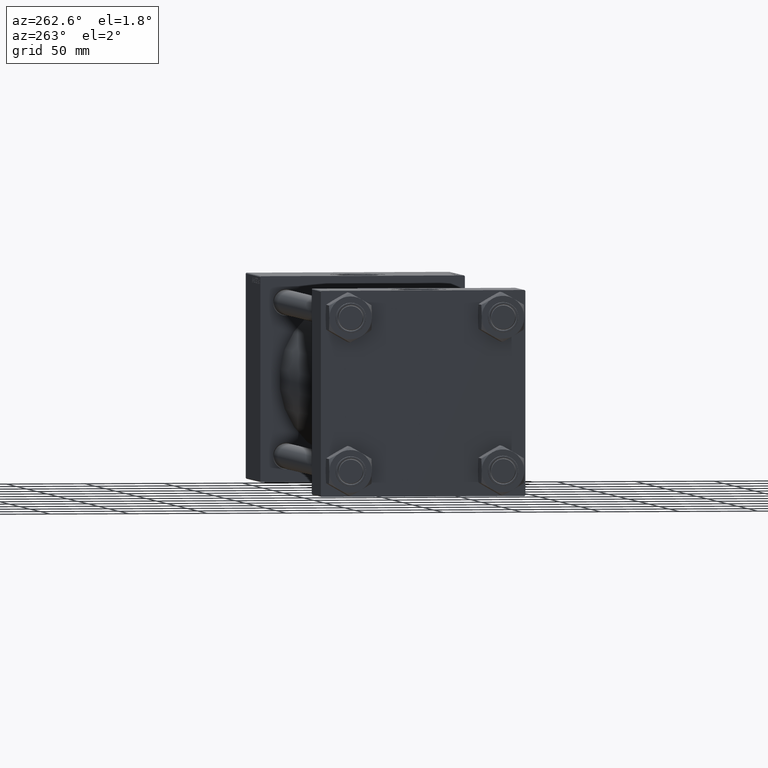
[diagram: clean part render]
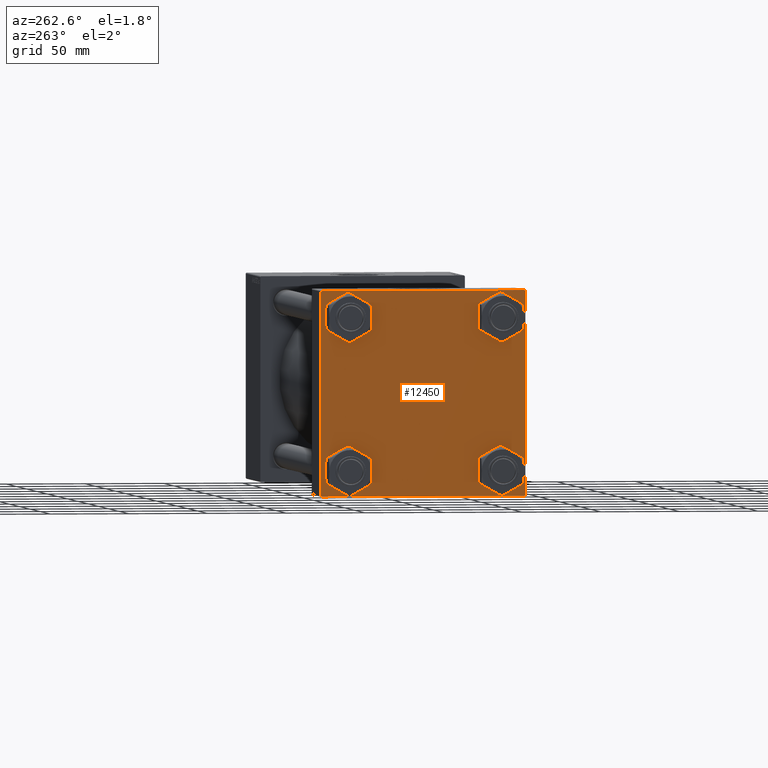
[diagram: same view with one face highlighted and labeled with its STEP entity id]
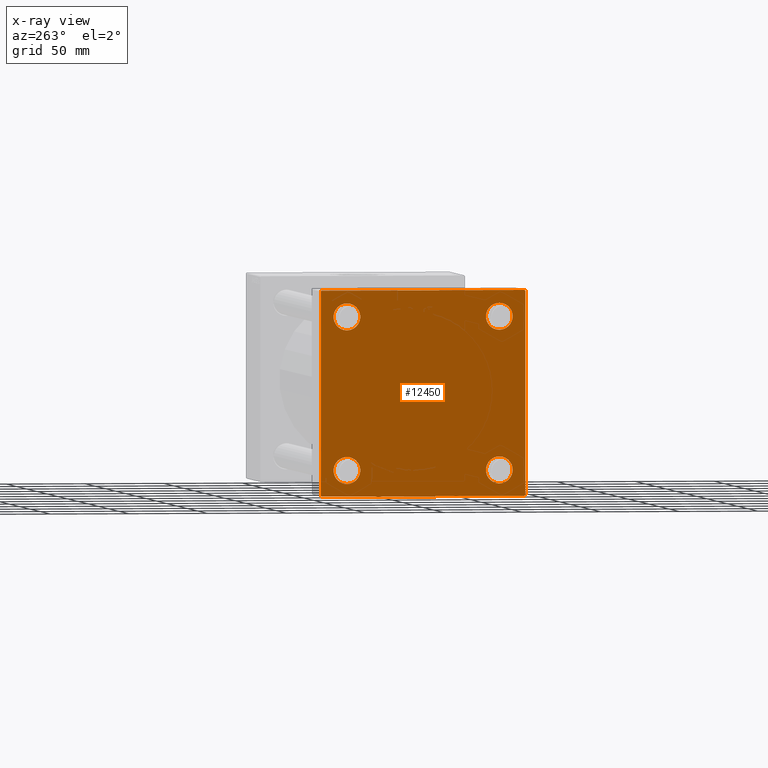
[diagram: x-ray of the same camera — body ghosted, the highlighted face saturated]
A machine part, auxiliary view. The second image highlights one B-rep face of the part: STEP entity #12450.
The next image is the same camera in x-ray: the body ghosted, the highlighted face saturated — about 0% of this face is hidden behind the body in this view.
In plain terms, the highlighted planar face has unit normal (-1, 0, 0).
Its self-contained STEP definition (entity closure, byte-faithful):
#1081 = EDGE_CURVE ( 'NONE', #50172, #30473, #34067, .T. ) ;
#1301 = DIRECTION ( 'NONE',  ( 0.000000000000000000, -0.7071067811865279218, 0.7071067811865671127 ) ) ;
#1436 = DIRECTION ( 'NONE',  ( 0.000000000000000000, 0.000000000000000000, 1.000000000000000000 ) ) ;
#2717 = VECTOR ( 'NONE', #19235, 1000.000000000000000 ) ;
#2837 = DIRECTION ( 'NONE',  ( 1.000000000000000000, -0.000000000000000000, 0.000000000000000000 ) ) ;
#3359 = ORIENTED_EDGE ( 'NONE', *, *, #30015, .T. ) ;
#3396 = CARTESIAN_POINT ( 'NONE',  ( 0.000000000000000000, -48.44999999999999574, 56.95000000000003837 ) ) ;
#3439 = CARTESIAN_POINT ( 'NONE',  ( 0.000000000000000000, -65.00000000000000000, 64.50000000000000000 ) ) ;
#3901 = DIRECTION ( 'NONE',  ( 0.000000000000000000, 0.000000000000000000, 1.000000000000000000 ) ) ;
#4185 = EDGE_CURVE ( 'NONE', #35173, #28397, #23571, .T. ) ;
#4513 = CARTESIAN_POINT ( 'NONE',  ( 0.000000000000000000, -48.44999999999999574, -48.45000000000003126 ) ) ;
#5621 = CARTESIAN_POINT ( 'NONE',  ( 0.000000000000000000, 48.45000000000000995, -48.45000000000001705 ) ) ;
#5921 = CARTESIAN_POINT ( 'NONE',  ( 0.000000000000000000, 48.45000000000000995, 48.45000000000001705 ) ) ;
#6230 = DIRECTION ( 'NONE',  ( 1.000000000000000000, -0.000000000000000000, 0.000000000000000000 ) ) ;
#6255 = AXIS2_PLACEMENT_3D ( 'NONE', #5921, #2837, #34088 ) ;
#6269 = ORIENTED_EDGE ( 'NONE', *, *, #48920, .T. ) ;
#7040 = DIRECTION ( 'NONE',  ( -0.000000000000000000, -0.7071067811865474617, -0.7071067811865474617 ) ) ;
#7200 = VECTOR ( 'NONE', #29361, 1000.000000000000000 ) ;
#7766 = ORIENTED_EDGE ( 'NONE', *, *, #14516, .T. ) ;
#7791 = ORIENTED_EDGE ( 'NONE', *, *, #11510, .T. ) ;
#8300 = VECTOR ( 'NONE', #27948, 1000.000000000000000 ) ;
#8489 = EDGE_LOOP ( 'NONE', ( #49557, #3359, #22633, #7791, #27743, #42726, #21791, #23147 ) ) ;
#8968 = EDGE_CURVE ( 'NONE', #36947, #23292, #48527, .T. ) ;
#9744 = DIRECTION ( 'NONE',  ( -0.000000000000000000, 0.000000000000000000, 1.000000000000000000 ) ) ;
#9885 = CARTESIAN_POINT ( 'NONE',  ( 0.000000000000000000, 65.00000000000000000, 65.00000000000001421 ) ) ;
#10140 = CARTESIAN_POINT ( 'NONE',  ( 0.000000000000000000, -48.44999999999999574, -39.95000000000001705 ) ) ;
#11128 = DIRECTION ( 'NONE',  ( 1.000000000000000000, -0.000000000000000000, 0.000000000000000000 ) ) ;
#11139 = CARTESIAN_POINT ( 'NONE',  ( 0.000000000000000000, 48.45000000000000995, 39.95000000000000284 ) ) ;
#11188 = EDGE_LOOP ( 'NONE', ( #28393, #23780 ) ) ;
#11240 = VERTEX_POINT ( 'NONE', #33627 ) ;
#11510 = EDGE_CURVE ( 'NONE', #21568, #28397, #20513, .T. ) ;
#12013 = EDGE_CURVE ( 'NONE', #42841, #30139, #33136, .T. ) ;
#12450 = ADVANCED_FACE ( 'NONE', ( #49192, #22542, #22292, #14864, #14107 ), #29732, .T. ) ;
#13542 = DIRECTION ( 'NONE',  ( 0.000000000000000000, -1.000000000000000000, -1.067522139062650425E-16 ) ) ;
#13837 = CARTESIAN_POINT ( 'NONE',  ( 0.000000000000000000, 65.00000000000000000, 64.49999999999998579 ) ) ;
#13966 = CARTESIAN_POINT ( 'NONE',  ( 0.000000000000000000, -48.44999999999999574, 48.45000000000003126 ) ) ;
#14053 = LINE ( 'NONE', #33013, #14569 ) ;
#14107 = FACE_OUTER_BOUND ( 'NONE', #8489, .T. ) ;
#14516 = EDGE_CURVE ( 'NONE', #23292, #36947, #34595, .T. ) ;
#14569 = VECTOR ( 'NONE', #13542, 1000.000000000000000 ) ;
#14864 = FACE_BOUND ( 'NONE', #46292, .T. ) ;
#15538 = DIRECTION ( 'NONE',  ( -0.000000000000000000, 0.7071067811865672237, 0.7071067811865279218 ) ) ;
#16534 = ORIENTED_EDGE ( 'NONE', *, *, #8968, .T. ) ;
#16579 = EDGE_LOOP ( 'NONE', ( #26312, #6269 ) ) ;
#17698 = CIRCLE ( 'NONE', #6255, 8.500000000000007105 ) ;
#18018 = VERTEX_POINT ( 'NONE', #36144 ) ;
#18753 = CIRCLE ( 'NONE', #47375, 8.500000000000007105 ) ;
#18949 = CIRCLE ( 'NONE', #42671, 8.500000000000007105 ) ;
#19066 = CARTESIAN_POINT ( 'NONE',  ( 0.000000000000000000, 64.74999999999997158, -64.74999999999997158 ) ) ;
#19235 = DIRECTION ( 'NONE',  ( 0.000000000000000000, 0.000000000000000000, -1.000000000000000000 ) ) ;
#19552 = VECTOR ( 'NONE', #15538, 1000.000000000000000 ) ;
#20139 = DIRECTION ( 'NONE',  ( 0.000000000000000000, 0.000000000000000000, 1.000000000000000000 ) ) ;
#20269 = CARTESIAN_POINT ( 'NONE',  ( 0.000000000000000000, 65.00000000000000000, -64.99999999999998579 ) ) ;
#20326 = CARTESIAN_POINT ( 'NONE',  ( 0.000000000000000000, 48.45000000000000995, 56.95000000000002416 ) ) ;
#20336 = CARTESIAN_POINT ( 'NONE',  ( 0.000000000000000000, -64.49999999999994316, -65.00000000000000000 ) ) ;
#20513 = LINE ( 'NONE', #43558, #41245 ) ;
#20570 = ORIENTED_EDGE ( 'NONE', *, *, #27316, .T. ) ;
#21151 = CARTESIAN_POINT ( 'NONE',  ( 0.000000000000000000, 48.45000000000000995, -48.45000000000001705 ) ) ;
#21414 = LINE ( 'NONE', #9885, #7200 ) ;
#21568 = VERTEX_POINT ( 'NONE', #20336 ) ;
#21660 = DIRECTION ( 'NONE',  ( 1.000000000000000000, -0.000000000000000000, 0.000000000000000000 ) ) ;
#21791 = ORIENTED_EDGE ( 'NONE', *, *, #31510, .F. ) ;
#22292 = FACE_BOUND ( 'NONE', #11188, .T. ) ;
#22542 = FACE_BOUND ( 'NONE', #16579, .T. ) ;
#22633 = ORIENTED_EDGE ( 'NONE', *, *, #48064, .T. ) ;
#22720 = CARTESIAN_POINT ( 'NONE',  ( -0.000000000000000000, -64.74999999999819522, 64.75000000000179057 ) ) ;
#23147 = ORIENTED_EDGE ( 'NONE', *, *, #1081, .T. ) ;
#23220 = LINE ( 'NONE', #22720, #19552 ) ;
#23287 = AXIS2_PLACEMENT_3D ( 'NONE', #38346, #30671, #46038 ) ;
#23292 = VERTEX_POINT ( 'NONE', #37765 ) ;
#23571 = LINE ( 'NONE', #27420, #2717 ) ;
#23780 = ORIENTED_EDGE ( 'NONE', *, *, #24575, .T. ) ;
#24575 = EDGE_CURVE ( 'NONE', #29274, #35463, #35723, .T. ) ;
#26312 = ORIENTED_EDGE ( 'NONE', *, *, #34935, .T. ) ;
#26808 = CARTESIAN_POINT ( 'NONE',  ( 0.000000000000000000, 64.49999999999997158, -64.99999999999998579 ) ) ;
#26952 = CARTESIAN_POINT ( 'NONE',  ( 0.000000000000000000, 64.49999999999997158, 65.00000000000001421 ) ) ;
#27316 = EDGE_CURVE ( 'NONE', #30139, #42841, #17698, .T. ) ;
#27420 = CARTESIAN_POINT ( 'NONE',  ( 0.000000000000000000, -65.00000000000000000, 65.00000000000000000 ) ) ;
#27743 = ORIENTED_EDGE ( 'NONE', *, *, #4185, .F. ) ;
#27948 = DIRECTION ( 'NONE',  ( 0.000000000000000000, -1.000000000000000000, -1.067522139062650425E-16 ) ) ;
#28393 = ORIENTED_EDGE ( 'NONE', *, *, #48454, .T. ) ;
#28397 = VERTEX_POINT ( 'NONE', #40457 ) ;
#28469 = CARTESIAN_POINT ( 'NONE',  ( 0.000000000000000000, 48.45000000000000995, -39.95000000000000284 ) ) ;
#28719 = LINE ( 'NONE', #20269, #8300 ) ;
#29191 = DIRECTION ( 'NONE',  ( 0.000000000000000000, 0.000000000000000000, 1.000000000000000000 ) ) ;
#29274 = VERTEX_POINT ( 'NONE', #43834 ) ;
#29361 = DIRECTION ( 'NONE',  ( 0.000000000000000000, 0.000000000000000000, -1.000000000000000000 ) ) ;
#29576 = VERTEX_POINT ( 'NONE', #35376 ) ;
#29732 = PLANE ( 'NONE',  #34727 ) ;
#29990 = DIRECTION ( 'NONE',  ( -1.000000000000000000, 0.000000000000000000, -0.000000000000000000 ) ) ;
#30015 = EDGE_CURVE ( 'NONE', #29576, #47283, #46971, .T. ) ;
#30072 = VECTOR ( 'NONE', #7040, 1000.000000000000114 ) ;
#30139 = VERTEX_POINT ( 'NONE', #20326 ) ;
#30315 = DIRECTION ( 'NONE',  ( 1.000000000000000000, -0.000000000000000000, 0.000000000000000000 ) ) ;
#30473 = VERTEX_POINT ( 'NONE', #13837 ) ;
#30671 = DIRECTION ( 'NONE',  ( 1.000000000000000000, -0.000000000000000000, 0.000000000000000000 ) ) ;
#31510 = EDGE_CURVE ( 'NONE', #50172, #18018, #14053, .T. ) ;
#31752 = EDGE_CURVE ( 'NONE', #30473, #29576, #21414, .T. ) ;
#33013 = CARTESIAN_POINT ( 'NONE',  ( 0.000000000000000000, 65.00000000000000000, 65.00000000000001421 ) ) ;
#33136 = CIRCLE ( 'NONE', #23287, 8.500000000000007105 ) ;
#33441 = ORIENTED_EDGE ( 'NONE', *, *, #12013, .T. ) ;
#33627 = CARTESIAN_POINT ( 'NONE',  ( 0.000000000000000000, -48.44999999999999574, -56.95000000000003837 ) ) ;
#33831 = EDGE_CURVE ( 'NONE', #35173, #18018, #23220, .T. ) ;
#34067 = LINE ( 'NONE', #46096, #45940 ) ;
#34088 = DIRECTION ( 'NONE',  ( 0.000000000000000000, 0.000000000000000000, 1.000000000000000000 ) ) ;
#34433 = DIRECTION ( 'NONE',  ( 0.000000000000000000, 0.000000000000000000, 1.000000000000000000 ) ) ;
#34595 = CIRCLE ( 'NONE', #40311, 8.500000000000007105 ) ;
#34727 = AXIS2_PLACEMENT_3D ( 'NONE', #37418, #29990, #9744 ) ;
#34918 = AXIS2_PLACEMENT_3D ( 'NONE', #5621, #48907, #29191 ) ;
#34935 = EDGE_CURVE ( 'NONE', #42784, #11240, #18753, .T. ) ;
#35173 = VERTEX_POINT ( 'NONE', #3439 ) ;
#35330 = CIRCLE ( 'NONE', #44328, 8.500000000000007105 ) ;
#35376 = CARTESIAN_POINT ( 'NONE',  ( 0.000000000000000000, 65.00000000000000000, -64.49999999999995737 ) ) ;
#35463 = VERTEX_POINT ( 'NONE', #28469 ) ;
#35723 = CIRCLE ( 'NONE', #34918, 8.500000000000007105 ) ;
#36144 = CARTESIAN_POINT ( 'NONE',  ( 0.000000000000000000, -64.49999999999997158, 65.00000000000000000 ) ) ;
#36947 = VERTEX_POINT ( 'NONE', #3396 ) ;
#37418 = CARTESIAN_POINT ( 'NONE',  ( 0.000000000000000000, 0.000000000000000000, 0.000000000000000000 ) ) ;
#37486 = DIRECTION ( 'NONE',  ( 0.000000000000000000, 0.000000000000000000, 1.000000000000000000 ) ) ;
#37739 = EDGE_LOOP ( 'NONE', ( #16534, #7766 ) ) ;
#37765 = CARTESIAN_POINT ( 'NONE',  ( 0.000000000000000000, -48.44999999999999574, 39.95000000000001705 ) ) ;
#38346 = CARTESIAN_POINT ( 'NONE',  ( 0.000000000000000000, 48.45000000000000995, 48.45000000000001705 ) ) ;
#40311 = AXIS2_PLACEMENT_3D ( 'NONE', #50513, #30315, #3901 ) ;
#40457 = CARTESIAN_POINT ( 'NONE',  ( 0.000000000000000000, -65.00000000000000000, -64.49999999999991473 ) ) ;
#41245 = VECTOR ( 'NONE', #1301, 1000.000000000000000 ) ;
#41327 = CARTESIAN_POINT ( 'NONE',  ( 0.000000000000000000, -48.44999999999999574, -48.45000000000003126 ) ) ;
#42245 = DIRECTION ( 'NONE',  ( 0.000000000000000000, 0.7071067811865474617, -0.7071067811865474617 ) ) ;
#42671 = AXIS2_PLACEMENT_3D ( 'NONE', #21151, #21660, #1436 ) ;
#42726 = ORIENTED_EDGE ( 'NONE', *, *, #33831, .T. ) ;
#42784 = VERTEX_POINT ( 'NONE', #10140 ) ;
#42841 = VERTEX_POINT ( 'NONE', #11139 ) ;
#43558 = CARTESIAN_POINT ( 'NONE',  ( 0.000000000000000000, -64.75000000000176215, -64.74999999999816680 ) ) ;
#43834 = CARTESIAN_POINT ( 'NONE',  ( 0.000000000000000000, 48.45000000000000995, -56.95000000000002416 ) ) ;
#44199 = DIRECTION ( 'NONE',  ( 1.000000000000000000, -0.000000000000000000, 0.000000000000000000 ) ) ;
#44328 = AXIS2_PLACEMENT_3D ( 'NONE', #41327, #6230, #37486 ) ;
#45940 = VECTOR ( 'NONE', #42245, 1000.000000000000114 ) ;
#46038 = DIRECTION ( 'NONE',  ( 0.000000000000000000, 0.000000000000000000, 1.000000000000000000 ) ) ;
#46070 = AXIS2_PLACEMENT_3D ( 'NONE', #13966, #11128, #34433 ) ;
#46096 = CARTESIAN_POINT ( 'NONE',  ( 0.000000000000000000, 64.74999999999998579, 64.74999999999998579 ) ) ;
#46292 = EDGE_LOOP ( 'NONE', ( #20570, #33441 ) ) ;
#46971 = LINE ( 'NONE', #19066, #30072 ) ;
#47283 = VERTEX_POINT ( 'NONE', #26808 ) ;
#47375 = AXIS2_PLACEMENT_3D ( 'NONE', #4513, #44199, #20139 ) ;
#48064 = EDGE_CURVE ( 'NONE', #47283, #21568, #28719, .T. ) ;
#48454 = EDGE_CURVE ( 'NONE', #35463, #29274, #18949, .T. ) ;
#48527 = CIRCLE ( 'NONE', #46070, 8.500000000000007105 ) ;
#48907 = DIRECTION ( 'NONE',  ( 1.000000000000000000, -0.000000000000000000, 0.000000000000000000 ) ) ;
#48920 = EDGE_CURVE ( 'NONE', #11240, #42784, #35330, .T. ) ;
#49192 = FACE_BOUND ( 'NONE', #37739, .T. ) ;
#49557 = ORIENTED_EDGE ( 'NONE', *, *, #31752, .T. ) ;
#50172 = VERTEX_POINT ( 'NONE', #26952 ) ;
#50513 = CARTESIAN_POINT ( 'NONE',  ( 0.000000000000000000, -48.44999999999999574, 48.45000000000003126 ) ) ;